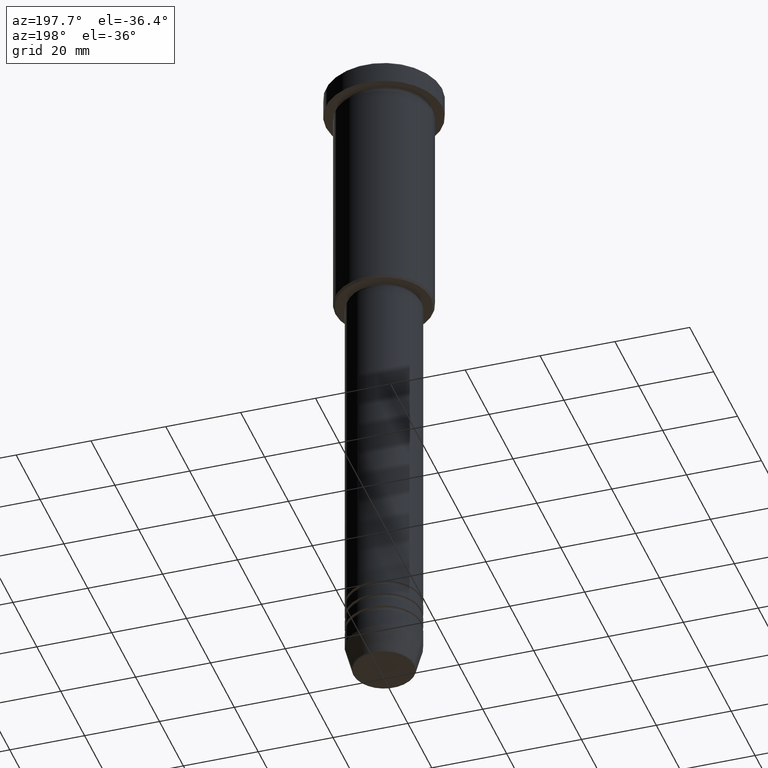
[diagram: clean part render]
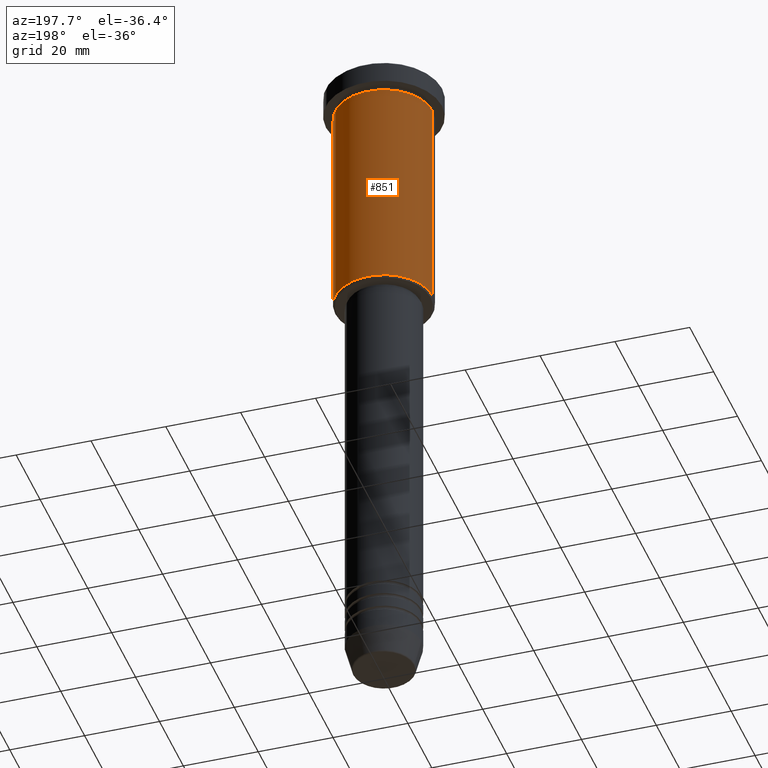
[diagram: same view with one face highlighted and labeled with its STEP entity id]
A machine part, auxiliary view. The second image highlights one B-rep face of the part: STEP entity #851.
In plain terms, the highlighted cylindrical surface (partial cylindrical patch) has radius 13 mm, axis along (-0, -0, 1).
Its self-contained STEP definition (entity closure, byte-faithful):
#27 = EDGE_LOOP ( 'NONE', ( #124, #653, #821, #729 ) ) ;
#45 = CARTESIAN_POINT ( 'NONE',  ( 0.000000000000000000, 0.000000000000000000, 0.000000000000000000 ) ) ;
#102 = VERTEX_POINT ( 'NONE', #122 ) ;
#120 = CARTESIAN_POINT ( 'NONE',  ( -13.00000000000000178, 1.592040838891559293E-15, -6.999999999999995559 ) ) ;
#122 = CARTESIAN_POINT ( 'NONE',  ( -13.00000000000000178, 1.592040838891559293E-15, -65.49999999999997158 ) ) ;
#124 = ORIENTED_EDGE ( 'NONE', *, *, #779, .T. ) ;
#132 = DIRECTION ( 'NONE',  ( -0.000000000000000000, -0.000000000000000000, 1.000000000000000000 ) ) ;
#149 = CARTESIAN_POINT ( 'NONE',  ( 13.00000000000000178, 0.000000000000000000, -6.999999999999995559 ) ) ;
#178 = CARTESIAN_POINT ( 'NONE',  ( 0.000000000000000000, 0.000000000000000000, -65.49999999999997158 ) ) ;
#206 = LINE ( 'NONE', #484, #481 ) ;
#237 = EDGE_CURVE ( 'NONE', #1084, #378, #825, .T. ) ;
#263 = VECTOR ( 'NONE', #293, 1000.000000000000000 ) ;
#293 = DIRECTION ( 'NONE',  ( -0.000000000000000000, -0.000000000000000000, 1.000000000000000000 ) ) ;
#294 = CYLINDRICAL_SURFACE ( 'NONE', #445, 13.00000000000000178 ) ;
#318 = DIRECTION ( 'NONE',  ( -0.000000000000000000, -0.000000000000000000, 1.000000000000000000 ) ) ;
#320 = DIRECTION ( 'NONE',  ( 1.000000000000000000, 0.000000000000000000, 0.000000000000000000 ) ) ;
#337 = CARTESIAN_POINT ( 'NONE',  ( 13.00000000000000178, 0.000000000000000000, -65.49999999999997158 ) ) ;
#341 = EDGE_CURVE ( 'NONE', #378, #847, #724, .T. ) ;
#378 = VERTEX_POINT ( 'NONE', #149 ) ;
#405 = CARTESIAN_POINT ( 'NONE',  ( 0.000000000000000000, 0.000000000000000000, -6.999999999999995559 ) ) ;
#445 = AXIS2_PLACEMENT_3D ( 'NONE', #45, #842, #320 ) ;
#460 = CIRCLE ( 'NONE', #955, 13.00000000000000178 ) ;
#481 = VECTOR ( 'NONE', #132, 1000.000000000000000 ) ;
#484 = CARTESIAN_POINT ( 'NONE',  ( -13.00000000000000178, 1.592040838891559293E-15, 0.000000000000000000 ) ) ;
#496 = FACE_OUTER_BOUND ( 'NONE', #27, .T. ) ;
#546 = DIRECTION ( 'NONE',  ( -1.000000000000000000, 0.000000000000000000, 0.000000000000000000 ) ) ;
#652 = AXIS2_PLACEMENT_3D ( 'NONE', #405, #318, #688 ) ;
#653 = ORIENTED_EDGE ( 'NONE', *, *, #939, .T. ) ;
#688 = DIRECTION ( 'NONE',  ( 1.000000000000000000, 0.000000000000000000, 0.000000000000000000 ) ) ;
#724 = CIRCLE ( 'NONE', #652, 13.00000000000000178 ) ;
#729 = ORIENTED_EDGE ( 'NONE', *, *, #237, .F. ) ;
#779 = EDGE_CURVE ( 'NONE', #1084, #102, #460, .T. ) ;
#821 = ORIENTED_EDGE ( 'NONE', *, *, #341, .F. ) ;
#825 = LINE ( 'NONE', #1107, #263 ) ;
#842 = DIRECTION ( 'NONE',  ( -0.000000000000000000, -0.000000000000000000, 1.000000000000000000 ) ) ;
#847 = VERTEX_POINT ( 'NONE', #120 ) ;
#851 = ADVANCED_FACE ( 'NONE', ( #496 ), #294, .T. ) ;
#911 = DIRECTION ( 'NONE',  ( -0.000000000000000000, -0.000000000000000000, 1.000000000000000000 ) ) ;
#939 = EDGE_CURVE ( 'NONE', #102, #847, #206, .T. ) ;
#955 = AXIS2_PLACEMENT_3D ( 'NONE', #178, #911, #546 ) ;
#1084 = VERTEX_POINT ( 'NONE', #337 ) ;
#1107 = CARTESIAN_POINT ( 'NONE',  ( 13.00000000000000178, 0.000000000000000000, 0.000000000000000000 ) ) ;